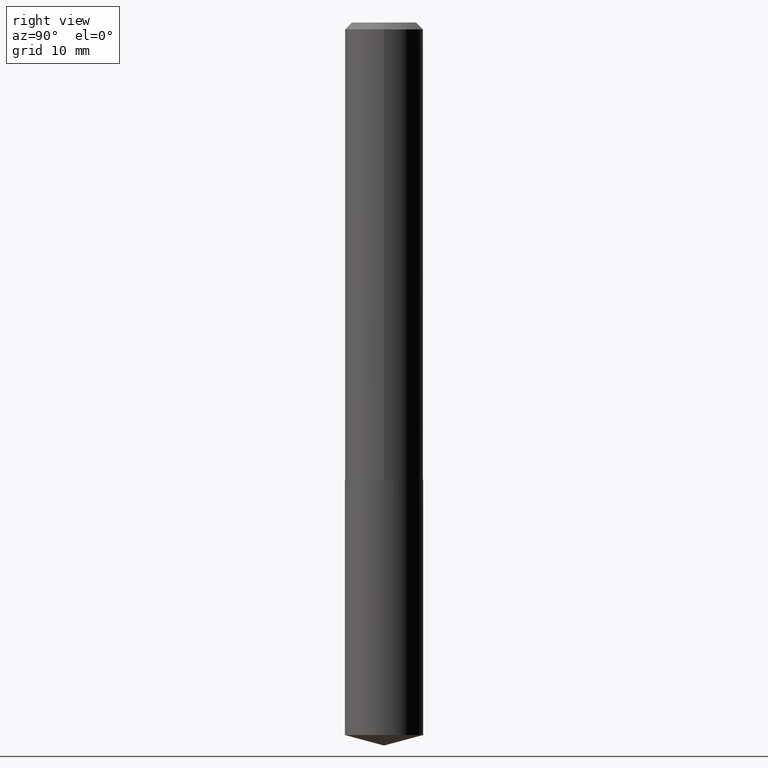
[diagram: clean part render]
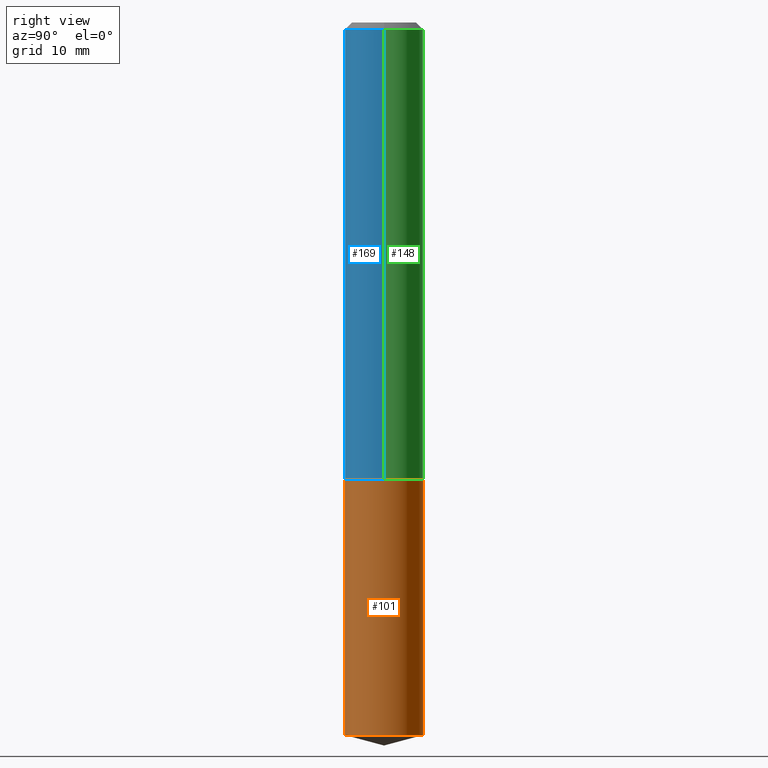
[diagram: same view with three faces highlighted in distinct colors, each labeled with its STEP entity id]
A machine part, right view with three faces highlighted in distinct colors.
Their STEP definitions:

[orange] entity #101 — the highlighted cylindrical surface (partial cylindrical patch) has radius 4.5504 mm, axis along (-0, 0, 1).
#10 = ORIENTED_EDGE ( 'NONE', *, *, #243, .F. ) ;
#11 = EDGE_CURVE ( 'NONE', #131, #244, #172, .T. ) ;
#15 = VECTOR ( 'NONE', #354, 39.37007874015748143 ) ;
#19 = DIRECTION ( 'NONE',  ( -6.982962677686265133E-15, -1.000000000000000000, 3.049788438363675772E-15 ) ) ;
#20 = CYLINDRICAL_SURFACE ( 'NONE', #130, 0.1791500000000000314 ) ;
#22 = ORIENTED_EDGE ( 'NONE', *, *, #341, .F. ) ;
#27 = CARTESIAN_POINT ( 'NONE',  ( -1.250997763707443541E-15, -0.1791500000000073312, -2.090599999999999792 ) ) ;
#45 = VERTEX_POINT ( 'NONE', #283 ) ;
#52 = LINE ( 'NONE', #27, #15 ) ;
#54 = CARTESIAN_POINT ( 'NONE',  ( 1.272937311114270588E-15, 0.1791499999999927040, -2.090600000000001124 ) ) ;
#68 = AXIS2_PLACEMENT_3D ( 'NONE', #113, #352, #174 ) ;
#76 = CARTESIAN_POINT ( 'NONE',  ( 7.969841897314090708E-29, -1.137933079738900462E-14, -3.259096902175965482 ) ) ;
#101 = ADVANCED_FACE ( 'NONE', ( #284 ), #20, .T. ) ;
#113 = CARTESIAN_POINT ( 'NONE',  ( 5.112497086210647566E-29, -7.299290886985481023E-15, -2.090600000000000236 ) ) ;
#130 = AXIS2_PLACEMENT_3D ( 'NONE', #134, #165, #19 ) ;
#131 = VERTEX_POINT ( 'NONE', #348 ) ;
#134 = CARTESIAN_POINT ( 'NONE',  ( 5.112497086210647566E-29, -7.299290886985481023E-15, -2.090600000000000236 ) ) ;
#142 = DIRECTION ( 'NONE',  ( -2.445316547936515157E-29, 3.491699381321172837E-15, 1.000000000000000000 ) ) ;
#165 = DIRECTION ( 'NONE',  ( -2.445316547936515157E-29, 3.491699381321172837E-15, 1.000000000000000000 ) ) ;
#171 = CARTESIAN_POINT ( 'NONE',  ( 1.272937311114299381E-15, 0.1791499999999886794, -3.259096902175965926 ) ) ;
#172 = CIRCLE ( 'NONE', #311, 0.1791500000000000314 ) ;
#174 = DIRECTION ( 'NONE',  ( -6.982962677686265133E-15, -1.000000000000000000, 3.049788438363675772E-15 ) ) ;
#183 = VERTEX_POINT ( 'NONE', #389 ) ;
#202 = VECTOR ( 'NONE', #142, 39.37007874015748143 ) ;
#243 = EDGE_CURVE ( 'NONE', #131, #183, #52, .T. ) ;
#244 = VERTEX_POINT ( 'NONE', #171 ) ;
#283 = CARTESIAN_POINT ( 'NONE',  ( 1.272937311114299184E-15, 0.1791499999999927040, -2.090600000000001124 ) ) ;
#284 = FACE_OUTER_BOUND ( 'NONE', #338, .T. ) ;
#308 = ORIENTED_EDGE ( 'NONE', *, *, #324, .T. ) ;
#311 = AXIS2_PLACEMENT_3D ( 'NONE', #76, #313, #342 ) ;
#313 = DIRECTION ( 'NONE',  ( -2.445316547936515157E-29, 3.491699381321172837E-15, 1.000000000000000000 ) ) ;
#320 = LINE ( 'NONE', #54, #202 ) ;
#324 = EDGE_CURVE ( 'NONE', #244, #45, #320, .T. ) ;
#338 = EDGE_LOOP ( 'NONE', ( #371, #308, #22, #10 ) ) ;
#341 = EDGE_CURVE ( 'NONE', #183, #45, #344, .T. ) ;
#342 = DIRECTION ( 'NONE',  ( -6.982962677686265133E-15, -1.000000000000000000, 3.049788438363675772E-15 ) ) ;
#344 = CIRCLE ( 'NONE', #68, 0.1791500000000000314 ) ;
#348 = CARTESIAN_POINT ( 'NONE',  ( -1.250997763707415339E-15, -0.1791500000000114667, -3.259096902175965038 ) ) ;
#352 = DIRECTION ( 'NONE',  ( -2.445316547936515157E-29, 3.491699381321172837E-15, 1.000000000000000000 ) ) ;
#354 = DIRECTION ( 'NONE',  ( -2.445316547936515157E-29, 3.491699381321172837E-15, 1.000000000000000000 ) ) ;
#371 = ORIENTED_EDGE ( 'NONE', *, *, #11, .T. ) ;
#389 = CARTESIAN_POINT ( 'NONE',  ( -1.250997763707443541E-15, -0.1791500000000073312, -2.090599999999999792 ) ) ;

[blue] entity #169 — the highlighted cylindrical surface (partial cylindrical patch) has radius 4.5504 mm, axis along (-0, 0, 1).
#7 = VERTEX_POINT ( 'NONE', #48 ) ;
#23 = AXIS2_PLACEMENT_3D ( 'NONE', #218, #138, #136 ) ;
#25 = DIRECTION ( 'NONE',  ( -2.445468806185136597E-29, 3.491481338843145583E-15, 1.000000000000000000 ) ) ;
#44 = ORIENTED_EDGE ( 'NONE', *, *, #366, .F. ) ;
#48 = CARTESIAN_POINT ( 'NONE',  ( -0.1791500000000002535, -6.024607835201839024E-15, -2.090100000000000513 ) ) ;
#51 = CARTESIAN_POINT ( 'NONE',  ( 0.1791500000000001147, -1.250997763707495606E-15, 8.735670693838425178E-30 ) ) ;
#72 = CARTESIAN_POINT ( 'NONE',  ( 0.1791500000000000314, -1.360106555546343720E-15, -0.03125000000000018735 ) ) ;
#79 = EDGE_CURVE ( 'NONE', #121, #154, #221, .T. ) ;
#110 = CIRCLE ( 'NONE', #23, 0.1791500000000000314 ) ;
#115 = CIRCLE ( 'NONE', #265, 0.1791500000000002535 ) ;
#116 = EDGE_CURVE ( 'NONE', #270, #154, #110, .T. ) ;
#118 = CARTESIAN_POINT ( 'NONE',  ( 0.000000000000000000, 0.000000000000000000, 0.000000000000000000 ) ) ;
#119 = FACE_OUTER_BOUND ( 'NONE', #306, .T. ) ;
#121 = VERTEX_POINT ( 'NONE', #258 ) ;
#127 = CARTESIAN_POINT ( 'NONE',  ( -0.1791500000000001147, 1.272937311114220298E-15, -8.812272214191669091E-30 ) ) ;
#136 = DIRECTION ( 'NONE',  ( 1.000000000000000000, -6.982962677686267499E-15, 0.000000000000000000 ) ) ;
#138 = DIRECTION ( 'NONE',  ( -2.445468806185136597E-29, 3.491481338843145583E-15, 1.000000000000000000 ) ) ;
#154 = VERTEX_POINT ( 'NONE', #72 ) ;
#169 = ADVANCED_FACE ( 'NONE', ( #119 ), #386, .T. ) ;
#176 = CARTESIAN_POINT ( 'NONE',  ( 5.111274351807554765E-29, -7.297545146316060308E-15, -2.090100000000000513 ) ) ;
#191 = VECTOR ( 'NONE', #315, 39.37007874015748143 ) ;
#198 = DIRECTION ( 'NONE',  ( 1.000000000000000000, -6.982962677686262766E-15, 0.000000000000000000 ) ) ;
#214 = DIRECTION ( 'NONE',  ( -2.445468806185136877E-29, 3.491481338843145188E-15, 1.000000000000000000 ) ) ;
#218 = CARTESIAN_POINT ( 'NONE',  ( 7.642090019328597407E-31, -1.091087918388489527E-16, -0.03125000000000018735 ) ) ;
#221 = LINE ( 'NONE', #51, #191 ) ;
#226 = VECTOR ( 'NONE', #214, 39.37007874015748143 ) ;
#235 = DIRECTION ( 'NONE',  ( -2.445468806185136597E-29, 3.491481338843145583E-15, 1.000000000000000000 ) ) ;
#252 = ORIENTED_EDGE ( 'NONE', *, *, #287, .T. ) ;
#258 = CARTESIAN_POINT ( 'NONE',  ( 0.1791500000000002535, -8.548542910023556308E-15, -2.090100000000000513 ) ) ;
#262 = DIRECTION ( 'NONE',  ( 1.000000000000000000, -6.982962677686267499E-15, 4.876176775795936353E-29 ) ) ;
#265 = AXIS2_PLACEMENT_3D ( 'NONE', #176, #25, #198 ) ;
#268 = ORIENTED_EDGE ( 'NONE', *, *, #79, .T. ) ;
#270 = VERTEX_POINT ( 'NONE', #292 ) ;
#287 = EDGE_CURVE ( 'NONE', #7, #121, #115, .T. ) ;
#292 = CARTESIAN_POINT ( 'NONE',  ( -0.1791500000000000314, -2.430389657963233420E-15, -0.03125000000000018735 ) ) ;
#302 = LINE ( 'NONE', #127, #226 ) ;
#306 = EDGE_LOOP ( 'NONE', ( #44, #252, #268, #331 ) ) ;
#315 = DIRECTION ( 'NONE',  ( -2.445468806185136877E-29, 3.491481338843145188E-15, 1.000000000000000000 ) ) ;
#331 = ORIENTED_EDGE ( 'NONE', *, *, #116, .F. ) ;
#366 = EDGE_CURVE ( 'NONE', #7, #270, #302, .T. ) ;
#386 = CYLINDRICAL_SURFACE ( 'NONE', #388, 0.1791500000000001147 ) ;
#388 = AXIS2_PLACEMENT_3D ( 'NONE', #118, #235, #262 ) ;

[green] entity #148 — the highlighted cylindrical surface (partial cylindrical patch) has radius 4.5504 mm, axis along (-0, 0, 1).
#7 = VERTEX_POINT ( 'NONE', #48 ) ;
#18 = EDGE_CURVE ( 'NONE', #121, #7, #60, .T. ) ;
#35 = EDGE_CURVE ( 'NONE', #154, #270, #335, .T. ) ;
#48 = CARTESIAN_POINT ( 'NONE',  ( -0.1791500000000002535, -6.024607835201839024E-15, -2.090100000000000513 ) ) ;
#50 = CARTESIAN_POINT ( 'NONE',  ( 7.642090019328597407E-31, -1.091087918388489527E-16, -0.03125000000000018735 ) ) ;
#51 = CARTESIAN_POINT ( 'NONE',  ( 0.1791500000000001147, -1.250997763707495606E-15, 8.735670693838425178E-30 ) ) ;
#60 = CIRCLE ( 'NONE', #317, 0.1791500000000002535 ) ;
#72 = CARTESIAN_POINT ( 'NONE',  ( 0.1791500000000000314, -1.360106555546343720E-15, -0.03125000000000018735 ) ) ;
#74 = FACE_OUTER_BOUND ( 'NONE', #278, .T. ) ;
#78 = DIRECTION ( 'NONE',  ( 1.000000000000000000, -6.982962677686267499E-15, 0.000000000000000000 ) ) ;
#79 = EDGE_CURVE ( 'NONE', #121, #154, #221, .T. ) ;
#108 = CARTESIAN_POINT ( 'NONE',  ( 5.111274351807554765E-29, -7.297545146316060308E-15, -2.090100000000000513 ) ) ;
#109 = DIRECTION ( 'NONE',  ( -2.445468806185136597E-29, 3.491481338843145583E-15, 1.000000000000000000 ) ) ;
#121 = VERTEX_POINT ( 'NONE', #258 ) ;
#127 = CARTESIAN_POINT ( 'NONE',  ( -0.1791500000000001147, 1.272937311114220298E-15, -8.812272214191669091E-30 ) ) ;
#128 = ORIENTED_EDGE ( 'NONE', *, *, #366, .T. ) ;
#146 = AXIS2_PLACEMENT_3D ( 'NONE', #50, #160, #78 ) ;
#148 = ADVANCED_FACE ( 'NONE', ( #74 ), #223, .T. ) ;
#154 = VERTEX_POINT ( 'NONE', #72 ) ;
#160 = DIRECTION ( 'NONE',  ( -2.445468806185136597E-29, 3.491481338843145583E-15, 1.000000000000000000 ) ) ;
#184 = ORIENTED_EDGE ( 'NONE', *, *, #35, .F. ) ;
#189 = ORIENTED_EDGE ( 'NONE', *, *, #79, .F. ) ;
#191 = VECTOR ( 'NONE', #315, 39.37007874015748143 ) ;
#194 = DIRECTION ( 'NONE',  ( 1.000000000000000000, -6.982962677686262766E-15, 0.000000000000000000 ) ) ;
#196 = AXIS2_PLACEMENT_3D ( 'NONE', #318, #109, #345 ) ;
#214 = DIRECTION ( 'NONE',  ( -2.445468806185136877E-29, 3.491481338843145188E-15, 1.000000000000000000 ) ) ;
#221 = LINE ( 'NONE', #51, #191 ) ;
#223 = CYLINDRICAL_SURFACE ( 'NONE', #196, 0.1791500000000001147 ) ;
#226 = VECTOR ( 'NONE', #214, 39.37007874015748143 ) ;
#258 = CARTESIAN_POINT ( 'NONE',  ( 0.1791500000000002535, -8.548542910023556308E-15, -2.090100000000000513 ) ) ;
#270 = VERTEX_POINT ( 'NONE', #292 ) ;
#276 = ORIENTED_EDGE ( 'NONE', *, *, #18, .T. ) ;
#278 = EDGE_LOOP ( 'NONE', ( #276, #128, #184, #189 ) ) ;
#288 = DIRECTION ( 'NONE',  ( -2.445468806185136597E-29, 3.491481338843145583E-15, 1.000000000000000000 ) ) ;
#292 = CARTESIAN_POINT ( 'NONE',  ( -0.1791500000000000314, -2.430389657963233420E-15, -0.03125000000000018735 ) ) ;
#302 = LINE ( 'NONE', #127, #226 ) ;
#315 = DIRECTION ( 'NONE',  ( -2.445468806185136877E-29, 3.491481338843145188E-15, 1.000000000000000000 ) ) ;
#317 = AXIS2_PLACEMENT_3D ( 'NONE', #108, #288, #194 ) ;
#318 = CARTESIAN_POINT ( 'NONE',  ( 0.000000000000000000, 0.000000000000000000, 0.000000000000000000 ) ) ;
#335 = CIRCLE ( 'NONE', #146, 0.1791500000000000314 ) ;
#345 = DIRECTION ( 'NONE',  ( 1.000000000000000000, -6.982962677686267499E-15, 4.876176775795936353E-29 ) ) ;
#366 = EDGE_CURVE ( 'NONE', #7, #270, #302, .T. ) ;